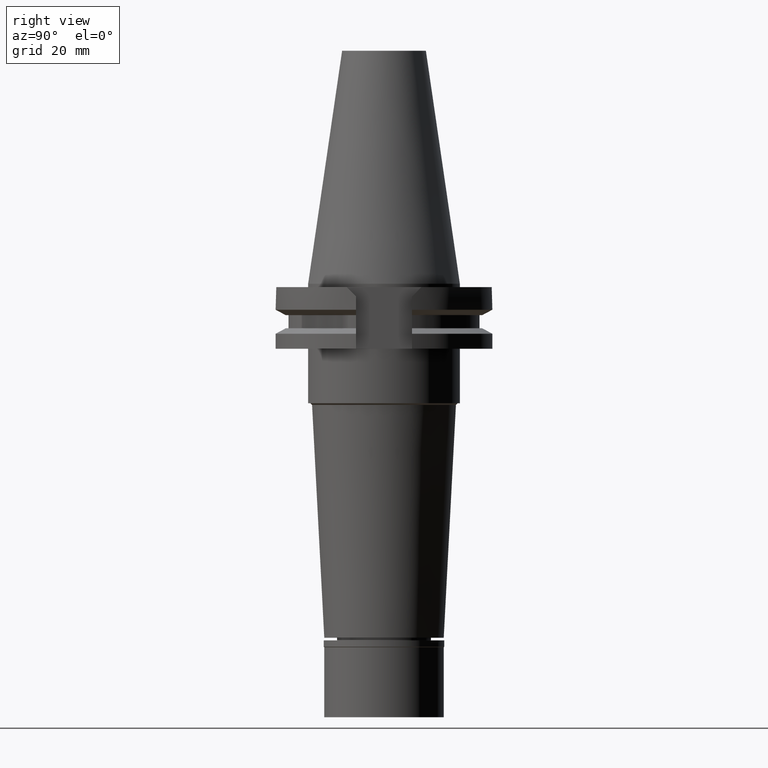
[diagram: clean part render]
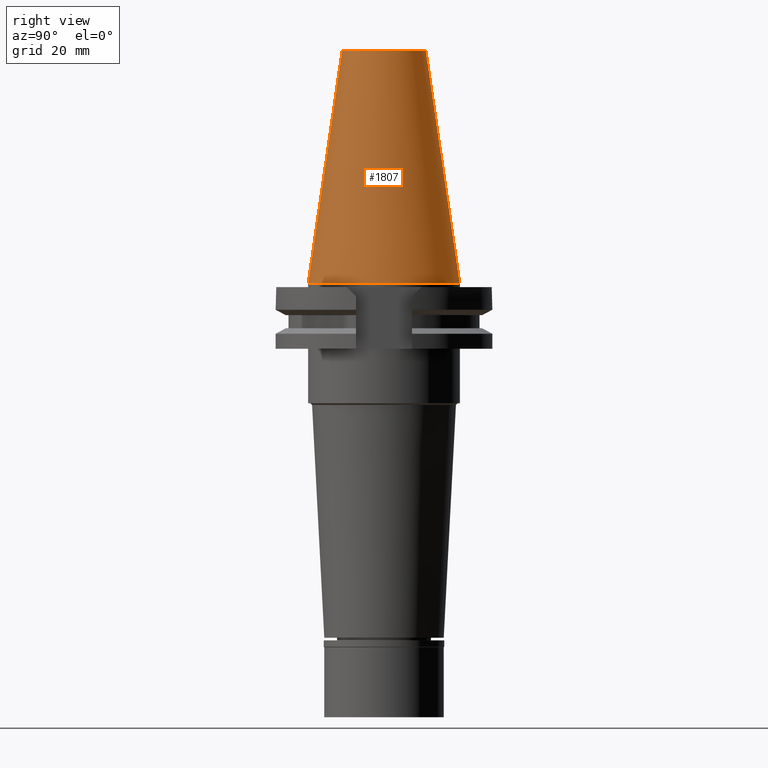
[diagram: same view with one face highlighted and labeled with its STEP entity id]
A machine part, right view. The second image highlights one B-rep face of the part: STEP entity #1807.
In plain terms, the highlighted conical surface has half-angle 8.297 deg.
Its self-contained STEP definition (entity closure, byte-faithful):
#77 = DIRECTION ( 'NONE',  ( 0.0000000000000000000, 0.0000000000000000000, -1.000000000000000000 ) ) ;
#153 = AXIS2_PLACEMENT_3D ( 'NONE', #331, #1886, #1636 ) ;
#331 = CARTESIAN_POINT ( 'NONE',  ( 0.0000000000000000000, 1.642557519355999895E-14, -3.126388037344000570E-13 ) ) ;
#777 = CARTESIAN_POINT ( 'NONE',  ( 0.0000000000000000000, 1.642557519355999895E-14, 34.12500000000000000 ) ) ;
#955 = AXIS2_PLACEMENT_3D ( 'NONE', #1813, #77, #2850 ) ;
#1139 = CARTESIAN_POINT ( 'NONE',  ( 0.0000000000000000000, 12.27186888070000137, 68.25000000000000000 ) ) ;
#1156 = CARTESIAN_POINT ( 'NONE',  ( 0.0000000000000000000, -12.27186888070000137, 68.25000000000000000 ) ) ;
#1257 = CARTESIAN_POINT ( 'NONE',  ( 0.0000000000000000000, -22.22500000000000142, -2.131628207279999655E-13 ) ) ;
#1374 = VERTEX_POINT ( 'NONE', #1156 ) ;
#1397 = VECTOR ( 'NONE', #2859, 1000.000000000000114 ) ;
#1539 = ORIENTED_EDGE ( 'NONE', *, *, #2310, .T. ) ;
#1575 = CIRCLE ( 'NONE', #153, 22.22500000000000142 ) ;
#1588 = VERTEX_POINT ( 'NONE', #1257 ) ;
#1636 = DIRECTION ( 'NONE',  ( 0.0000000000000000000, 1.000000000000000000, 0.0000000000000000000 ) ) ;
#1649 = ORIENTED_EDGE ( 'NONE', *, *, #2562, .T. ) ;
#1656 = DIRECTION ( 'NONE',  ( 0.0000000000000000000, 0.1443069799456937474, -0.9895329683941577192 ) ) ;
#1788 = VECTOR ( 'NONE', #1656, 1000.000000000000114 ) ;
#1807 = ADVANCED_FACE ( 'NONE', ( #2382 ), #2695, .T. ) ;
#1813 = CARTESIAN_POINT ( 'NONE',  ( 0.0000000000000000000, 1.642557519355999895E-14, 68.25000000000000000 ) ) ;
#1816 = DIRECTION ( 'NONE',  ( 0.0000000000000000000, -1.000000000000000000, 0.0000000000000000000 ) ) ;
#1827 = LINE ( 'NONE', #3355, #1788 ) ;
#1847 = DIRECTION ( 'NONE',  ( 0.0000000000000000000, 0.0000000000000000000, -1.000000000000000000 ) ) ;
#1883 = VERTEX_POINT ( 'NONE', #1139 ) ;
#1886 = DIRECTION ( 'NONE',  ( 0.0000000000000000000, 0.0000000000000000000, -1.000000000000000000 ) ) ;
#2094 = AXIS2_PLACEMENT_3D ( 'NONE', #777, #1847, #1816 ) ;
#2189 = ORIENTED_EDGE ( 'NONE', *, *, #2291, .F. ) ;
#2286 = VERTEX_POINT ( 'NONE', #3104 ) ;
#2291 = EDGE_CURVE ( 'NONE', #1883, #2286, #1827, .T. ) ;
#2310 = EDGE_CURVE ( 'NONE', #1883, #1374, #3243, .T. ) ;
#2326 = EDGE_LOOP ( 'NONE', ( #1539, #1649, #2440, #2189 ) ) ;
#2382 = FACE_OUTER_BOUND ( 'NONE', #2326, .T. ) ;
#2440 = ORIENTED_EDGE ( 'NONE', *, *, #2863, .F. ) ;
#2562 = EDGE_CURVE ( 'NONE', #1374, #1588, #2805, .T. ) ;
#2695 = CONICAL_SURFACE ( 'NONE', #2094, 17.24843444035000317, 0.1448125860318199565 ) ;
#2805 = LINE ( 'NONE', #3079, #1397 ) ;
#2850 = DIRECTION ( 'NONE',  ( 0.0000000000000000000, 1.000000000000000000, 0.0000000000000000000 ) ) ;
#2859 = DIRECTION ( 'NONE',  ( 0.0000000000000000000, -0.1443069799456937474, -0.9895329683941577192 ) ) ;
#2863 = EDGE_CURVE ( 'NONE', #2286, #1588, #1575, .T. ) ;
#3079 = CARTESIAN_POINT ( 'NONE',  ( 0.0000000000000000000, -12.27186888070000137, 68.25000000000000000 ) ) ;
#3104 = CARTESIAN_POINT ( 'NONE',  ( 0.0000000000000000000, 22.22500000000000142, -2.131628207279999655E-13 ) ) ;
#3243 = CIRCLE ( 'NONE', #955, 12.27186888070000137 ) ;
#3355 = CARTESIAN_POINT ( 'NONE',  ( 0.0000000000000000000, 12.27186888070000137, 68.25000000000000000 ) ) ;